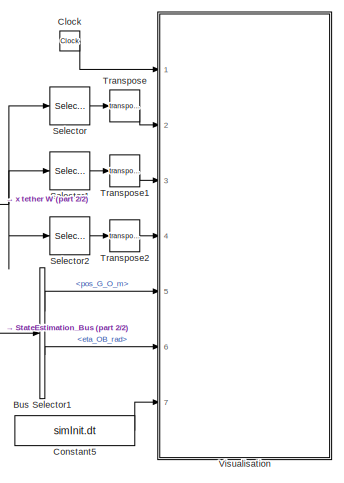
[diagram: root canvas - part 1/2, top right region]
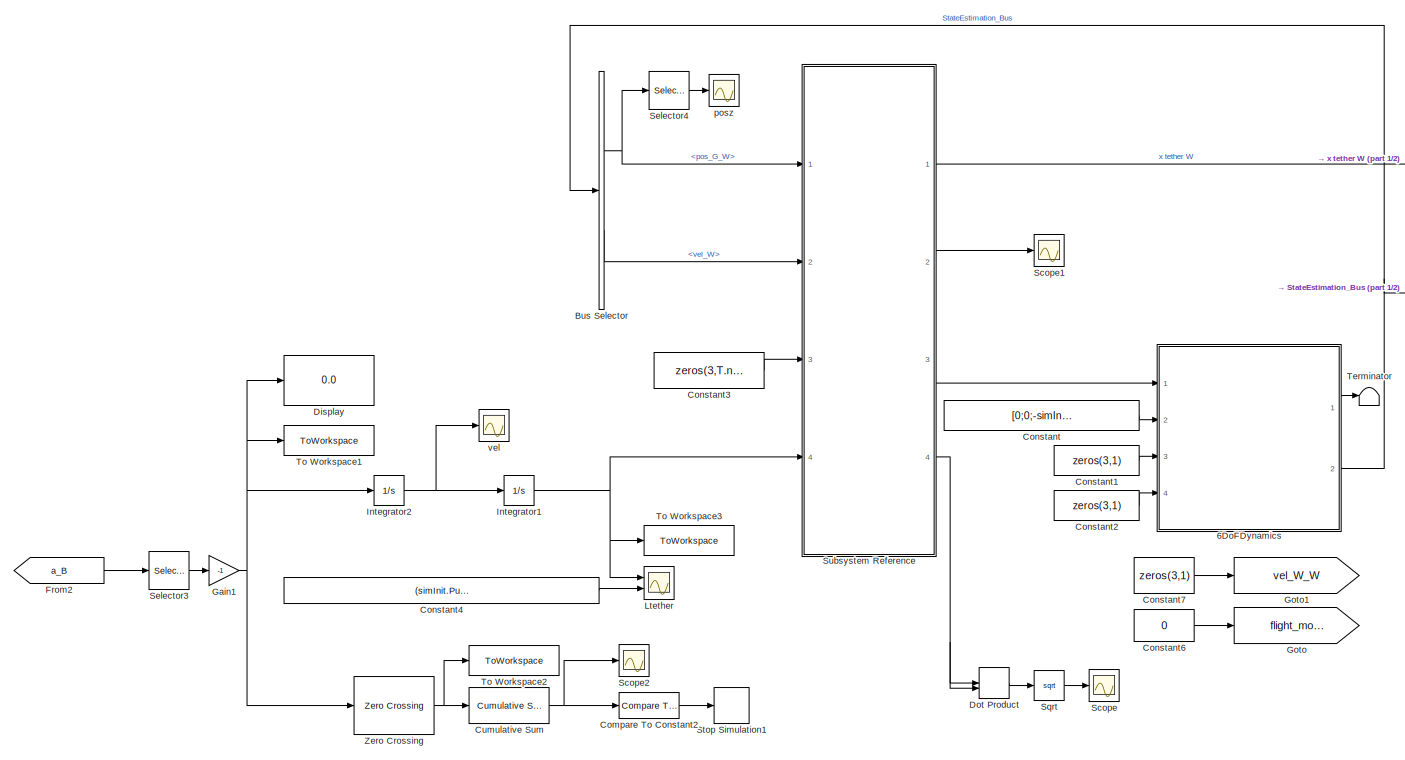
[diagram: root canvas - part 2/2, most of the canvas]
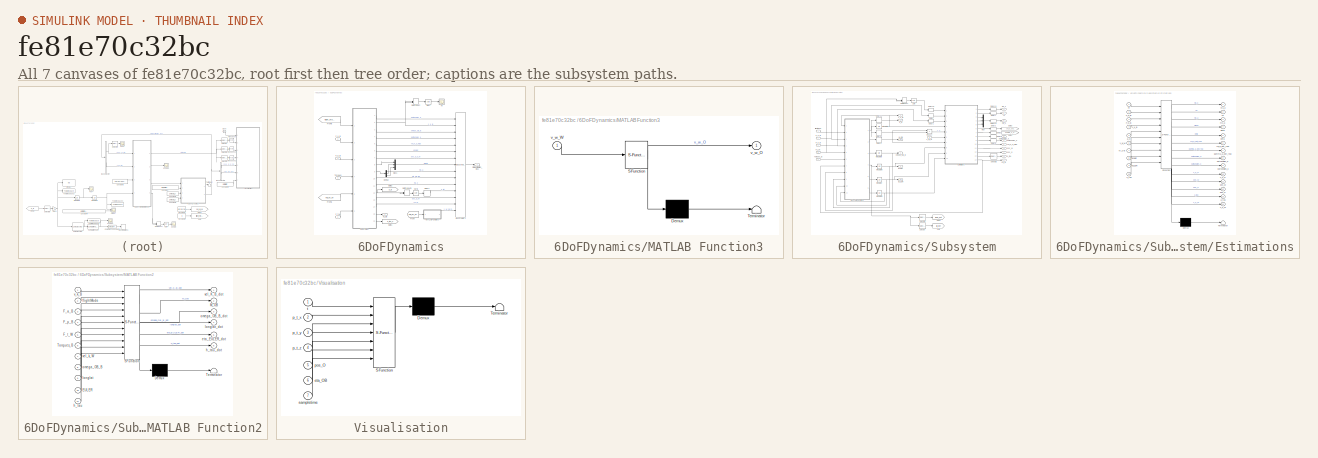
[diagram: thumbnail index - all 7 canvases of the model, root first then tree order]
MODEL slx_fe81e70c32bc
KIND model
CONFIG AbsTol = auto
CONFIG EnableMultiTasking = on
CONFIG FixedStep = dt
CONFIG InitFcn = close all
CONFIG MaxStep = auto
CONFIG MinStep = auto
CONFIG RelTol = 1e-3
CONFIG SampleTimeConstraint = Unconstrained
CONFIG Solver = ode4
CONFIG SolverName = ode4
CONFIG StartTime = 0.0
CONFIG StopTime = 300
BLOCK [SubSystem] 6DoFDynamics
  Ports = [4, 2]
  RequestExecContextInheritance = off
BLOCK [BusCreator] 6DoFDynamics/Bus Creator1
  DisplayOption = bar
  InheritFromInputs = on
  Inputs = 15
  Ports = [15, 1]
BLOCK [Delay] 6DoFDynamics/Delay1
  DelayLength = 1
  InputPortMap = u0
  Ports = [1, 1]
BLOCK [Demux] 6DoFDynamics/Demux
  DisplayOption = bar
  Outputs = 3
  Ports = [1, 3]
BLOCK [DotProduct] 6DoFDynamics/Dot Product
  OutDataTypeStr = Inherit: Inherit via internal rule
BLOCK [DotProduct] 6DoFDynamics/Dot Product1
  OutDataTypeStr = Inherit: Inherit via internal rule
BLOCK [Inport] 6DoFDynamics/F_a_B
  IconDisplay = Port number
  Port = 2
BLOCK [Inport] 6DoFDynamics/F_p_B
  IconDisplay = Port number
  Port = 3
BLOCK [Inport] 6DoFDynamics/F_t_W
  IconDisplay = Port number
BLOCK [From] 6DoFDynamics/From
  GotoTag = vel_W_W
  TagVisibility = global
BLOCK [From] 6DoFDynamics/From1
  GotoTag = vel_W_W
  TagVisibility = global
BLOCK [From] 6DoFDynamics/From5
  GotoTag = flight_mode
  TagVisibility = global
BLOCK [Goto] 6DoFDynamics/Goto1
  GotoTag = a_tau_z
  TagVisibility = global
BLOCK [Goto] 6DoFDynamics/Goto2
  GotoTag = a_B
  TagVisibility = global
BLOCK [SubSystem] 6DoFDynamics/MATLAB Function3
  ErrorFcn = Stateflow.Translate.translate
  PermitHierarchicalResolution = ExplicitOnly
  Ports = [1, 1]
  RequestExecContextInheritance = off
  SFBlockType = MATLAB Function
  TreatAsAtomicUnit = on
BLOCK [Demux] 6DoFDynamics/MATLAB Function3/ Demux 
  DisplayOption = bar
  Outputs = 1
  Ports = [1, 1]
BLOCK [S-Function] 6DoFDynamics/MATLAB Function3/ SFunction 
  EnableBusSupport = on
  FunctionName = sf_sfun
  Parameters = ENVMT
  PortCounts = [1 2]
  Ports = [1, 2]
  SFcnIsStateOwnerBlock = off
  SFunctionDeploymentMode = off
  Tag = Stateflow S-Function 35
BLOCK [Terminator] 6DoFDynamics/MATLAB Function3/ Terminator 
BLOCK [Outport] 6DoFDynamics/MATLAB Function3/v_w_O
  IconDisplay = Port number
  VectorParamsAs1DForOutWhenUnconnected = off
BLOCK [Inport] 6DoFDynamics/MATLAB Function3/v_w_W
  IconDisplay = Port number
BLOCK [Outport] 6DoFDynamics/M_OB
  IconDisplay = Port number
  PortDimensions = [3,3]
  VectorParamsAs1DForOutWhenUnconnected = off
BLOCK [Mux] 6DoFDynamics/Mux1
  DisplayOption = bar
  Inputs = 3
  Ports = [3, 1]
BLOCK [Sqrt] 6DoFDynamics/Sqrt
BLOCK [Sqrt] 6DoFDynamics/Sqrt1
BLOCK [Outport] 6DoFDynamics/StateEstimation_Bus
  IconDisplay = Port number
  Port = 2
  VectorParamsAs1DForOutWhenUnconnected = off
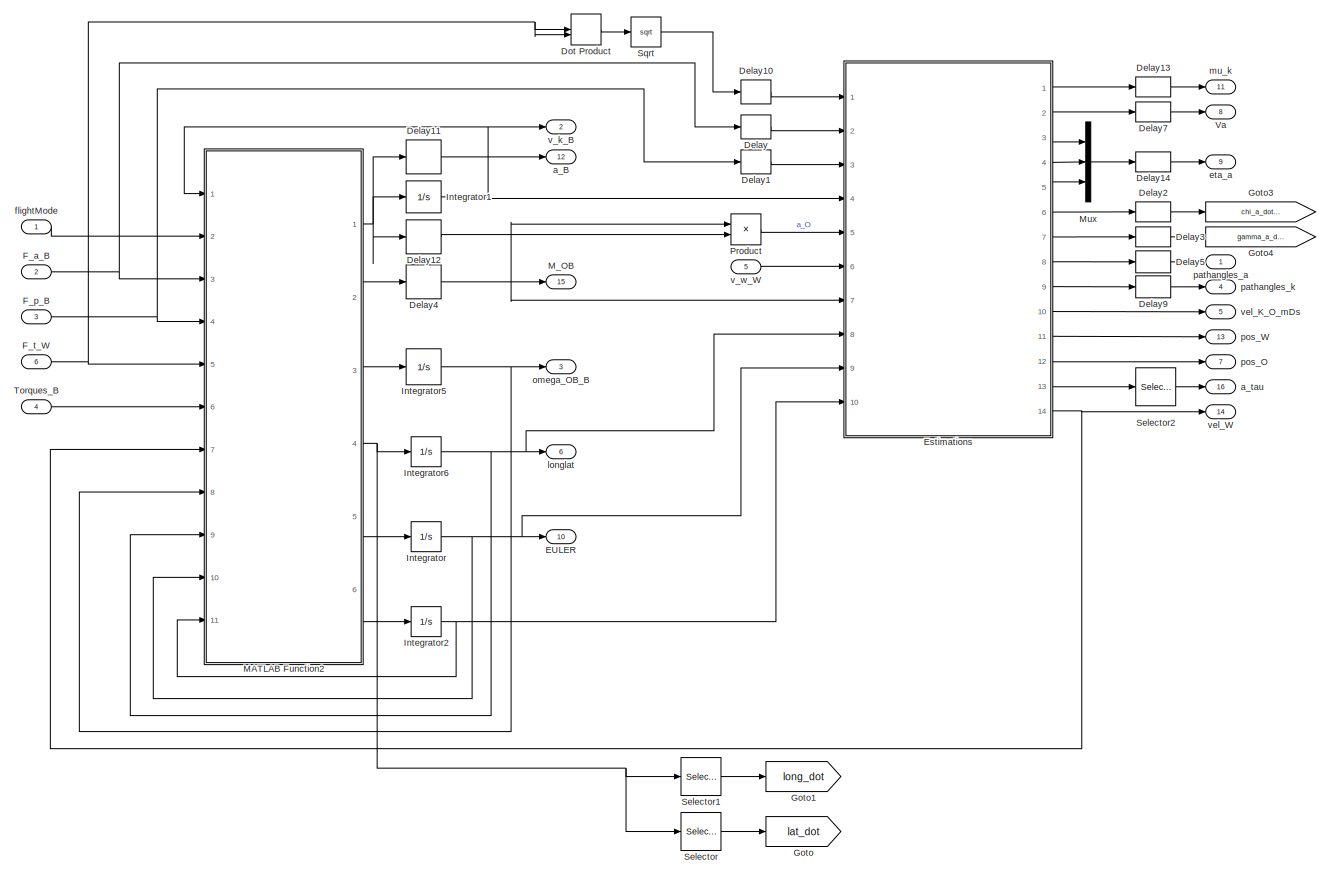
[diagram: 6DoFDynamics/Subsystem - part 1/1, most of the canvas]
BLOCK [SubSystem] 6DoFDynamics/Subsystem
  Ports = [6, 16]
  RequestExecContextInheritance = off
BLOCK [Delay] 6DoFDynamics/Subsystem/Delay
  DelayLength = 1
  InitialCondition = zeros(3,1)
  InputPortMap = u0
  Ports = [1, 1]
BLOCK [Delay] 6DoFDynamics/Subsystem/Delay1
  DelayLength = 1
  InitialCondition = zeros(3,1)
  InputPortMap = u0
  Ports = [1, 1]
BLOCK [Delay] 6DoFDynamics/Subsystem/Delay10
  DelayLength = 1
  InitialCondition = 0
  InputPortMap = u0
  Ports = [1, 1]
BLOCK [Delay] 6DoFDynamics/Subsystem/Delay11
  DelayLength = 1
  InitialCondition = zeros(3,1)
  InputPortMap = u0
  Ports = [1, 1]
BLOCK [Delay] 6DoFDynamics/Subsystem/Delay12
  DelayLength = 1
  InitialCondition = zeros(3,1)
  InputPortMap = u0
  Ports = [1, 1]
BLOCK [Delay] 6DoFDynamics/Subsystem/Delay13
  DelayLength = 1
  InitialCondition = 0
  InputPortMap = u0
  Ports = [1, 1]
BLOCK [Delay] 6DoFDynamics/Subsystem/Delay14
  DelayLength = 1
  InitialCondition = zeros(3,1)
  InputPortMap = u0
  Ports = [1, 1]
BLOCK [Delay] 6DoFDynamics/Subsystem/Delay2
  DelayLength = 1
  InputPortMap = u0
  Ports = [1, 1]
BLOCK [Delay] 6DoFDynamics/Subsystem/Delay3
  DelayLength = 1
  InputPortMap = u0
  Ports = [1, 1]
BLOCK [Delay] 6DoFDynamics/Subsystem/Delay4
  DelayLength = 1
  InitialCondition = eye(3)
  InputPortMap = u0
  Ports = [1, 1]
BLOCK [Delay] 6DoFDynamics/Subsystem/Delay5
  DelayLength = 1
  InitialCondition = zeros(2,1)
  InputPortMap = u0
  Ports = [1, 1]
BLOCK [Delay] 6DoFDynamics/Subsystem/Delay7
  DelayLength = 1
  InitialCondition = simInit.vel_B_init(1)
  InputPortMap = u0
  Ports = [1, 1]
BLOCK [Delay] 6DoFDynamics/Subsystem/Delay9
  DelayLength = 1
  InitialCondition = zeros(2,1)
  InputPortMap = u0
  Ports = [1, 1]
BLOCK [DotProduct] 6DoFDynamics/Subsystem/Dot Product
  OutDataTypeStr = Inherit: Inherit via internal rule
BLOCK [Outport] 6DoFDynamics/Subsystem/EULER
  IconDisplay = Port number
  Port = 10
  PortDimensions = [3,1]
  VectorParamsAs1DForOutWhenUnconnected = off
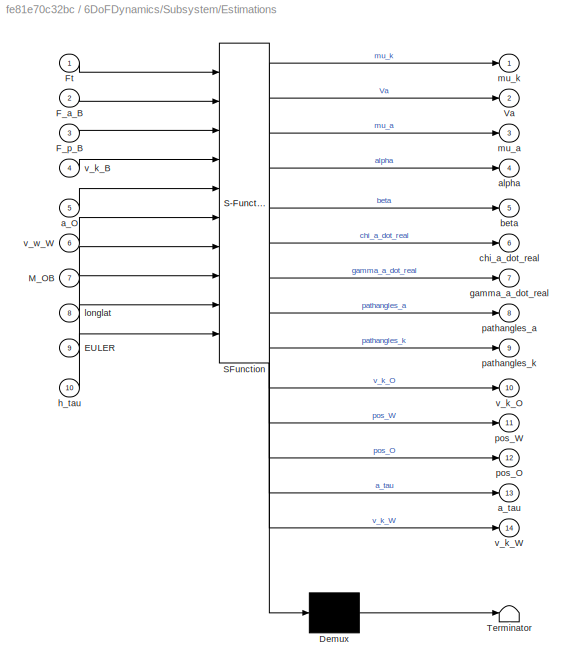
BLOCK [SubSystem] 6DoFDynamics/Subsystem/Estimations
  ErrorFcn = Stateflow.Translate.translate
  PermitHierarchicalResolution = ExplicitOnly
  Ports = [10, 14]
  RequestExecContextInheritance = off
  SFBlockType = MATLAB Function
  TreatAsAtomicUnit = on
BLOCK [Demux] 6DoFDynamics/Subsystem/Estimations/ Demux 
  DisplayOption = bar
  Outputs = 1
  Ports = [1, 1]
BLOCK [S-Function] 6DoFDynamics/Subsystem/Estimations/ SFunction 
  EnableBusSupport = on
  FunctionName = sf_sfun
  Parameters = DE2019,ENVMT
  PortCounts = [10 15]
  Ports = [10, 15]
  SFcnIsStateOwnerBlock = off
  SFunctionDeploymentMode = off
  Tag = Stateflow S-Function 9
BLOCK [Terminator] 6DoFDynamics/Subsystem/Estimations/ Terminator 
BLOCK [Inport] 6DoFDynamics/Subsystem/Estimations/EULER
  IconDisplay = Port number
  Port = 9
BLOCK [Inport] 6DoFDynamics/Subsystem/Estimations/F_a_B
  IconDisplay = Port number
  Port = 2
BLOCK [Inport] 6DoFDynamics/Subsystem/Estimations/F_p_B
  IconDisplay = Port number
  Port = 3
BLOCK [Inport] 6DoFDynamics/Subsystem/Estimations/Ft
  IconDisplay = Port number
BLOCK [Inport] 6DoFDynamics/Subsystem/Estimations/M_OB
  IconDisplay = Port number
  Port = 7
BLOCK [Outport] 6DoFDynamics/Subsystem/Estimations/Va
  IconDisplay = Port number
  Port = 2
  VectorParamsAs1DForOutWhenUnconnected = off
BLOCK [Inport] 6DoFDynamics/Subsystem/Estimations/a_O
  IconDisplay = Port number
  Port = 5
BLOCK [Outport] 6DoFDynamics/Subsystem/Estimations/a_tau
  IconDisplay = Port number
  Port = 13
  VectorParamsAs1DForOutWhenUnconnected = off
BLOCK [Outport] 6DoFDynamics/Subsystem/Estimations/alpha
  IconDisplay = Port number
  Port = 4
  VectorParamsAs1DForOutWhenUnconnected = off
BLOCK [Outport] 6DoFDynamics/Subsystem/Estimations/beta
  IconDisplay = Port number
  Port = 5
  VectorParamsAs1DForOutWhenUnconnected = off
BLOCK [Outport] 6DoFDynamics/Subsystem/Estimations/chi_a_dot_real
  IconDisplay = Port number
  Port = 6
  VectorParamsAs1DForOutWhenUnconnected = off
BLOCK [Outport] 6DoFDynamics/Subsystem/Estimations/gamma_a_dot_real
  IconDisplay = Port number
  Port = 7
  VectorParamsAs1DForOutWhenUnconnected = off
BLOCK [Inport] 6DoFDynamics/Subsystem/Estimations/h_tau
  IconDisplay = Port number
  Port = 10
BLOCK [Inport] 6DoFDynamics/Subsystem/Estimations/longlat
  IconDisplay = Port number
  Port = 8
BLOCK [Outport] 6DoFDynamics/Subsystem/Estimations/mu_a
  IconDisplay = Port number
  Port = 3
  VectorParamsAs1DForOutWhenUnconnected = off
BLOCK [Outport] 6DoFDynamics/Subsystem/Estimations/mu_k
  IconDisplay = Port number
  VectorParamsAs1DForOutWhenUnconnected = off
BLOCK [Outport] 6DoFDynamics/Subsystem/Estimations/pathangles_a
  IconDisplay = Port number
  Port = 8
  VectorParamsAs1DForOutWhenUnconnected = off
BLOCK [Outport] 6DoFDynamics/Subsystem/Estimations/pathangles_k
  IconDisplay = Port number
  Port = 9
  VectorParamsAs1DForOutWhenUnconnected = off
BLOCK [Outport] 6DoFDynamics/Subsystem/Estimations/pos_O
  IconDisplay = Port number
  Port = 12
  VectorParamsAs1DForOutWhenUnconnected = off
BLOCK [Outport] 6DoFDynamics/Subsystem/Estimations/pos_W
  IconDisplay = Port number
  Port = 11
  VectorParamsAs1DForOutWhenUnconnected = off
BLOCK [Inport] 6DoFDynamics/Subsystem/Estimations/v_k_B
  IconDisplay = Port number
  Port = 4
BLOCK [Outport] 6DoFDynamics/Subsystem/Estimations/v_k_O
  IconDisplay = Port number
  Port = 10
  VectorParamsAs1DForOutWhenUnconnected = off
BLOCK [Outport] 6DoFDynamics/Subsystem/Estimations/v_k_W
  IconDisplay = Port number
  Port = 14
  VectorParamsAs1DForOutWhenUnconnected = off
BLOCK [Inport] 6DoFDynamics/Subsystem/Estimations/v_w_W
  IconDisplay = Port number
  Port = 6
BLOCK [Inport] 6DoFDynamics/Subsystem/F_a_B
  IconDisplay = Port number
  Port = 2
  PortDimensions = [3,1]
BLOCK [Inport] 6DoFDynamics/Subsystem/F_p_B
  IconDisplay = Port number
  Port = 3
BLOCK [Inport] 6DoFDynamics/Subsystem/F_t_W
  IconDisplay = Port number
  Port = 6
BLOCK [Goto] 6DoFDynamics/Subsystem/Goto
  GotoTag = lat_dot
  TagVisibility = global
BLOCK [Goto] 6DoFDynamics/Subsystem/Goto1
  GotoTag = long_dot
  TagVisibility = global
BLOCK [Goto] 6DoFDynamics/Subsystem/Goto3
  GotoTag = chi_a_dot_real
  TagVisibility = global
BLOCK [Goto] 6DoFDynamics/Subsystem/Goto4
  GotoTag = gamma_a_dot_real
  TagVisibility = global
BLOCK [Integrator] 6DoFDynamics/Subsystem/Integrator
  InitialCondition = simInit.eta_init
  Ports = [1, 1]
  WrapState = on
BLOCK [Integrator] 6DoFDynamics/Subsystem/Integrator1
  InitialCondition = simInit.vel_B_init
  Ports = [1, 1]
BLOCK [Integrator] 6DoFDynamics/Subsystem/Integrator2
  InitialCondition = norm(simInit.pos_O_init)
  Ports = [1, 1]
BLOCK [Integrator] 6DoFDynamics/Subsystem/Integrator5
  InitialCondition = zeros(3,1)
  Ports = [1, 1]
BLOCK [Integrator] 6DoFDynamics/Subsystem/Integrator6
  InitialCondition = [simInit.long_init;simInit.lat_init]
  Ports = [1, 1]
  WrapState = on
BLOCK [SubSystem] 6DoFDynamics/Subsystem/MATLAB Function2
  ErrorFcn = Stateflow.Translate.translate
  PermitHierarchicalResolution = ExplicitOnly
  Ports = [11, 6]
  RequestExecContextInheritance = off
  SFBlockType = MATLAB Function
  TreatAsAtomicUnit = on
BLOCK [Demux] 6DoFDynamics/Subsystem/MATLAB Function2/ Demux 
  DisplayOption = bar
  Outputs = 1
  Ports = [1, 1]
BLOCK [S-Function] 6DoFDynamics/Subsystem/MATLAB Function2/ SFunction 
  EnableBusSupport = on
  FunctionName = sf_sfun
  Parameters = DE2019,ENVMT
  PortCounts = [11 7]
  Ports = [11, 7]
  SFcnIsStateOwnerBlock = off
  SFunctionDeploymentMode = off
  Tag = Stateflow S-Function 10
BLOCK [Terminator] 6DoFDynamics/Subsystem/MATLAB Function2/ Terminator 
BLOCK [Inport] 6DoFDynamics/Subsystem/MATLAB Function2/EULER
  IconDisplay = Port number
  Port = 10
BLOCK [Inport] 6DoFDynamics/Subsystem/MATLAB Function2/F_a_B
  IconDisplay = Port number
  Port = 3
BLOCK [Inport] 6DoFDynamics/Subsystem/MATLAB Function2/F_p_B
  IconDisplay = Port number
  Port = 4
BLOCK [Inport] 6DoFDynamics/Subsystem/MATLAB Function2/F_t_W
  IconDisplay = Port number
  Port = 5
BLOCK [Outport] 6DoFDynamics/Subsystem/MATLAB Function2/M_OB
  IconDisplay = Port number
  Port = 2
  VectorParamsAs1DForOutWhenUnconnected = off
BLOCK [Inport] 6DoFDynamics/Subsystem/MATLAB Function2/Torques_B
  IconDisplay = Port number
  Port = 6
BLOCK [Outport] 6DoFDynamics/Subsystem/MATLAB Function2/eta_EULER_dot
  IconDisplay = Port number
  Port = 5
  VectorParamsAs1DForOutWhenUnconnected = off
BLOCK [Inport] 6DoFDynamics/Subsystem/MATLAB Function2/flightMode
  IconDisplay = Port number
  Port = 2
BLOCK [Inport] 6DoFDynamics/Subsystem/MATLAB Function2/h_tau
  IconDisplay = Port number
  Port = 11
BLOCK [Outport] 6DoFDynamics/Subsystem/MATLAB Function2/h_tau_dot
  IconDisplay = Port number
  Port = 6
  VectorParamsAs1DForOutWhenUnconnected = off
BLOCK [Inport] 6DoFDynamics/Subsystem/MATLAB Function2/longlat
  IconDisplay = Port number
  Port = 9
BLOCK [Outport] 6DoFDynamics/Subsystem/MATLAB Function2/longlat_dot
  IconDisplay = Port number
  Port = 4
  VectorParamsAs1DForOutWhenUnconnected = off
BLOCK [Inport] 6DoFDynamics/Subsystem/MATLAB Function2/omega_OB_B
  IconDisplay = Port number
  Port = 8
BLOCK [Outport] 6DoFDynamics/Subsystem/MATLAB Function2/omega_OB_B_dot
  IconDisplay = Port number
  Port = 3
  VectorParamsAs1DForOutWhenUnconnected = off
BLOCK [Inport] 6DoFDynamics/Subsystem/MATLAB Function2/v_k_B
  IconDisplay = Port number
BLOCK [Outport] 6DoFDynamics/Subsystem/MATLAB Function2/vel_K_B_dot
  IconDisplay = Port number
  VectorParamsAs1DForOutWhenUnconnected = off
BLOCK [Inport] 6DoFDynamics/Subsystem/MATLAB Function2/vel_k_W
  IconDisplay = Port number
  Port = 7
BLOCK [Outport] 6DoFDynamics/Subsystem/M_OB
  IconDisplay = Port number
  Port = 15
  PortDimensions = [3,3]
  VectorParamsAs1DForOutWhenUnconnected = off
BLOCK [Mux] 6DoFDynamics/Subsystem/Mux
  DisplayOption = bar
  Inputs = 3
  Ports = [3, 1]
BLOCK [Product] 6DoFDynamics/Subsystem/Product
  InputSameDT = off
  Multiplication = Matrix(*)
  OutDataTypeStr = Inherit: Inherit via internal rule
  Ports = [2, 1]
  RndMeth = Floor
  SaturateOnIntegerOverflow = off
BLOCK [Selector] 6DoFDynamics/Subsystem/Selector
  IndexOptions = Index vector (dialog)
  Indices = 2
  InputPortWidth = 2
  OutputSizes = 1
  Ports = [1, 1]
BLOCK [Selector] 6DoFDynamics/Subsystem/Selector1
  IndexOptions = Index vector (dialog)
  Indices = 1
  InputPortWidth = 2
  OutputSizes = 1
  Ports = [1, 1]
BLOCK [Selector] 6DoFDynamics/Subsystem/Selector2
  IndexOptions = Index vector (dialog)
  Indices = 3
  InputPortWidth = 3
  OutputSizes = 1
  Ports = [1, 1]
BLOCK [Sqrt] 6DoFDynamics/Subsystem/Sqrt
BLOCK [Inport] 6DoFDynamics/Subsystem/Torques_B
  IconDisplay = Port number
  Port = 4
  PortDimensions = [3,1]
BLOCK [Outport] 6DoFDynamics/Subsystem/Va
  IconDisplay = Port number
  Port = 8
  PortDimensions = 1
  VectorParamsAs1DForOutWhenUnconnected = off
BLOCK [Outport] 6DoFDynamics/Subsystem/a_B
  IconDisplay = Port number
  Port = 12
  PortDimensions = [3,1]
  VectorParamsAs1DForOutWhenUnconnected = off
BLOCK [Outport] 6DoFDynamics/Subsystem/a_tau
  IconDisplay = Port number
  Port = 16
  PortDimensions = 1
  VectorParamsAs1DForOutWhenUnconnected = off
BLOCK [Outport] 6DoFDynamics/Subsystem/eta_a
  IconDisplay = Port number
  Port = 9
  PortDimensions = [3,1]
  VectorParamsAs1DForOutWhenUnconnected = off
BLOCK [Inport] 6DoFDynamics/Subsystem/flightMode
  IconDisplay = Port number
BLOCK [Outport] 6DoFDynamics/Subsystem/longlat
  IconDisplay = Port number
  Port = 6
  PortDimensions = [2,1]
  VectorParamsAs1DForOutWhenUnconnected = off
BLOCK [Outport] 6DoFDynamics/Subsystem/mu_k
  IconDisplay = Port number
  Port = 11
  PortDimensions = 1
  VectorParamsAs1DForOutWhenUnconnected = off
BLOCK [Outport] 6DoFDynamics/Subsystem/omega_OB_B
  IconDisplay = Port number
  Port = 3
  PortDimensions = [3,1]
  VectorParamsAs1DForOutWhenUnconnected = off
BLOCK [Outport] 6DoFDynamics/Subsystem/pathangles_a
  IconDisplay = Port number
  PortDimensions = [2,1]
  VectorParamsAs1DForOutWhenUnconnected = off
BLOCK [Outport] 6DoFDynamics/Subsystem/pathangles_k
  IconDisplay = Port number
  Port = 4
  PortDimensions = [2,1]
  VectorParamsAs1DForOutWhenUnconnected = off
BLOCK [Outport] 6DoFDynamics/Subsystem/pos_O
  IconDisplay = Port number
  Port = 7
  PortDimensions = [3,1]
  VectorParamsAs1DForOutWhenUnconnected = off
BLOCK [Outport] 6DoFDynamics/Subsystem/pos_W
  IconDisplay = Port number
  Port = 13
  PortDimensions = [3,1]
  VectorParamsAs1DForOutWhenUnconnected = off
BLOCK [Outport] 6DoFDynamics/Subsystem/v_k_B
  IconDisplay = Port number
  Port = 2
  PortDimensions = [3,1]
  VectorParamsAs1DForOutWhenUnconnected = off
BLOCK [Inport] 6DoFDynamics/Subsystem/v_w_W
  IconDisplay = Port number
  Port = 5
  PortDimensions = [3,1]
BLOCK [Outport] 6DoFDynamics/Subsystem/vel_K_O_mDs
  IconDisplay = Port number
  Port = 5
  PortDimensions = [3,1]
  VectorParamsAs1DForOutWhenUnconnected = off
BLOCK [Outport] 6DoFDynamics/Subsystem/vel_W
  IconDisplay = Port number
  Port = 14
  PortDimensions = [3,1]
  VectorParamsAs1DForOutWhenUnconnected = off
BLOCK [Inport] 6DoFDynamics/Torques
  IconDisplay = Port number
  Port = 4
BLOCK [Scope] 6DoFDynamics/Vk
  Floating = off
  NumInputPorts = 1
  Ports = [1]
  ScopeSpecificationString = Simulink.scopes.TimeScopeBlockCfg('CurrentConfiguration', extmgr.ConfigurationSet(extmgr.Configuration('Core','General UI',true),extmgr.Configuration('Core','Source UI',true),extmgr.Configuration('Sources','WiredSimulink',true,'DataLoggingVariableName','ScopeData2'),extmgr.Configuration('Visuals','Time Domain',true,'SerializedDisplays',{struct('MinYLimReal','19.31834','MaxYLimReal','96.53175','YLa...<+1468ch>
BLOCK [BusSelector] Bus Selector
  OutputAsBus = off
  OutputSignals = pos_G_W,vel_W
  Ports = [1, 2]
BLOCK [BusSelector] Bus Selector1
  Commented = on
  OutputAsBus = off
  OutputSignals = pos_G_O_m,eta_OB_rad
  Ports = [1, 2]
BLOCK [Clock] Clock
  Commented = on
BLOCK [Reference] Compare To Constant2  REF=simulink/Logic and Bit
Operations/Compare
To Constant
  Ports = [1, 1]
  SourceBlock = simulink/Logic and Bit\nOperations/Compare\nTo Constant
  SourceProductBaseCode = SL
  SourceType = Compare To Constant
BLOCK [Constant] Constant
  Value = [0;0;-simInit.Pulling_Force]
BLOCK [Constant] Constant1
  Value = zeros(3,1)
BLOCK [Constant] Constant2
  Value = zeros(3,1)
BLOCK [Constant] Constant3
  Value = zeros(3,T.np)
BLOCK [Constant] Constant4
  Value = (simInit.Pulling_Force-(DE2019.mass*ENVMT.g))/ENVMT.g/T.rho_t
BLOCK [Constant] Constant5
  Commented = on
  Value = simInit.dt
BLOCK [Constant] Constant6
  Value = 0
BLOCK [Constant] Constant7
  Value = zeros(3,1)
BLOCK [Reference] Cumulative Sum  REF=dspmathops/Cumulative
Sum
  Ports = [1, 1]
  SourceBlock = dspmathops/Cumulative\nSum
  SourceProductBaseCode = DS
  SourceType = Cumulative Sum
  UserDataPersistent = on
BLOCK [Display] Display
  Commented = on
  Decimation = 1
  Ports = [1]
BLOCK [DotProduct] Dot Product
  OutDataTypeStr = Inherit: Inherit via internal rule
BLOCK [From] From2
  GotoTag = a_B
  TagVisibility = global
BLOCK [Gain] Gain1
  Gain = -1
  OutDataTypeStr = Inherit: Inherit via internal rule
  ParamDataTypeStr = Inherit: Inherit via internal rule
  SaturateOnIntegerOverflow = off
BLOCK [Goto] Goto
  GotoTag = flight_mode
  TagVisibility = global
BLOCK [Goto] Goto1
  GotoTag = vel_W_W
  TagVisibility = global
BLOCK [Integrator] Integrator1
  InitialCondition = T.tether_inital_lenght
  Ports = [1, 1]
BLOCK [Integrator] Integrator2
  Ports = [1, 1]
BLOCK [Scope] Ltether
  Commented = on
  Floating = off
  NumInputPorts = 2
  Ports = [2]
  ScopeSpecificationString = Simulink.scopes.TimeScopeBlockCfg('CurrentConfiguration', extmgr.ConfigurationSet(extmgr.Configuration('Core','General UI',true),extmgr.Configuration('Core','Source UI',true),extmgr.Configuration('Sources','WiredSimulink',true,'DataLoggingVariableName','ScopeData2'),extmgr.Configuration('Visuals','Time Domain',true,'SerializedDisplays',{struct('MinYLimReal','299.22976','MaxYLimReal','306.9322','YL...<+1517ch>
BLOCK [Scope] Scope
  Floating = off
  NumInputPorts = 1
  Ports = [1]
  ScopeSpecificationString = Simulink.scopes.TimeScopeBlockCfg('CurrentConfiguration', extmgr.ConfigurationSet(extmgr.Configuration('Core','General UI',true),extmgr.Configuration('Core','Source UI',true),extmgr.Configuration('Sources','WiredSimulink',true,'DataLoggingVariableName','ScopeData1'),extmgr.Configuration('Visuals','Time Domain',true,'SerializedDisplays',{struct('MinYLimReal','-0.05843','MaxYLimReal','0.56694','YLab...<+1388ch>
BLOCK [Scope] Scope1
  Commented = on
  Floating = off
  NumInputPorts = 1
  Ports = [1]
  ScopeSpecificationString = Simulink.scopes.TimeScopeBlockCfg('CurrentConfiguration', extmgr.ConfigurationSet(extmgr.Configuration('Core','General UI',true),extmgr.Configuration('Core','Source UI',true),extmgr.Configuration('Sources','WiredSimulink',true,'DataLoggingVariableName','ScopeData5'),extmgr.Configuration('Visuals','Time Domain',true),extmgr.Configuration('Tools','Plot Navigation',true),extmgr.Configuration('Tools',...<+40ch>
BLOCK [Scope] Scope2
  Commented = on
  Floating = off
  NumInputPorts = 1
  Ports = [1]
  ScopeSpecificationString = Simulink.scopes.TimeScopeBlockCfg('CurrentConfiguration', extmgr.ConfigurationSet(extmgr.Configuration('Core','General UI',true),extmgr.Configuration('Core','Source UI',true),extmgr.Configuration('Sources','WiredSimulink',true,'DataLoggingVariableName','ScopeData6'),extmgr.Configuration('Visuals','Time Domain',true,'SerializedDisplays',{struct('MinYLimReal','-0.625','MaxYLimReal','5.625','YLabelRe...<+1391ch>
BLOCK [Selector] Selector
  Commented = on
  IndexOptions = Index vector (dialog),Select all
  Indices = 1,1
  InputPortWidth = 3
  NumberOfDimensions = 2
  OutputSizes = 1,1
  Ports = [1, 1]
BLOCK [Selector] Selector1
  Commented = on
  IndexOptions = Index vector (dialog),Select all
  Indices = 2,1
  InputPortWidth = 3
  NumberOfDimensions = 2
  OutputSizes = 1,1
  Ports = [1, 1]
BLOCK [Selector] Selector2
  Commented = on
  IndexOptions = Index vector (dialog),Select all
  Indices = 3,1
  InputPortWidth = 3
  NumberOfDimensions = 2
  OutputSizes = 1,1
  Ports = [1, 1]
BLOCK [Selector] Selector3
  IndexOptions = Index vector (dialog)
  Indices = 3
  InputPortWidth = 3
  OutputSizes = 1
  Ports = [1, 1]
BLOCK [Selector] Selector4
  Commented = on
  IndexOptions = Index vector (dialog)
  Indices = 3
  InputPortWidth = 3
  OutputSizes = 1
  Ports = [1, 1]
BLOCK [Sqrt] Sqrt
BLOCK [Stop] Stop Simulation1
BLOCK [SubSystem] Subsystem Reference
  Ports = [4, 4]
  ReferencedSubsystem = Tether_dynamics_R2019B
  RequestExecContextInheritance = off
BLOCK [Terminator] Terminator
BLOCK [ToWorkspace] To Workspace1
  FixptAsFi = on
  MaxDataPoints = inf
  Ports = [1]
  SampleTime = -1
  SaveFormat = Timeseries
  VariableName = acc_kite
BLOCK [ToWorkspace] To Workspace2
  FixptAsFi = on
  MaxDataPoints = inf
  Ports = [1]
  SampleTime = -1
  SaveFormat = Timeseries
  VariableName = zero_crossings
BLOCK [ToWorkspace] To Workspace3
  FixptAsFi = on
  MaxDataPoints = inf
  Ports = [1]
  SampleTime = -1
  SaveFormat = Timeseries
  VariableName = tether_length
BLOCK [Math] Transpose
  Commented = on
  Operator = transpose
  Ports = [1, 1]
  SignedPower = off
BLOCK [Math] Transpose1
  Commented = on
  Operator = transpose
  Ports = [1, 1]
  SignedPower = off
BLOCK [Math] Transpose2
  Commented = on
  Operator = transpose
  Ports = [1, 1]
  SignedPower = off
BLOCK [SubSystem] Visualisation
  Commented = on
  ErrorFcn = Stateflow.Translate.translate
  PermitHierarchicalResolution = ExplicitOnly
  Ports = [7]
  RequestExecContextInheritance = off
  SFBlockType = MATLAB Function
  TreatAsAtomicUnit = on
BLOCK [Demux] Visualisation/ Demux 
  DisplayOption = bar
  Outputs = 1
  Ports = [1, 1]
BLOCK [S-Function] Visualisation/ SFunction 
  EnableBusSupport = on
  FunctionName = sf_sfun
  Parameters = ENVMT
  PortCounts = [7 1]
  Ports = [7, 1]
  SFcnIsStateOwnerBlock = off
  SFunctionDeploymentMode = off
  Tag = Stateflow S-Function 28
BLOCK [Terminator] Visualisation/ Terminator 
BLOCK [Inport] Visualisation/eta_OB
  IconDisplay = Port number
  Port = 6
BLOCK [Inport] Visualisation/p_t_x
  IconDisplay = Port number
  Port = 2
BLOCK [Inport] Visualisation/p_t_y
  IconDisplay = Port number
  Port = 3
BLOCK [Inport] Visualisation/p_t_z
  IconDisplay = Port number
  Port = 4
BLOCK [Inport] Visualisation/pos_O
  IconDisplay = Port number
  Port = 5
BLOCK [Inport] Visualisation/sampletime
  IconDisplay = Port number
  Port = 7
BLOCK [Inport] Visualisation/t
  IconDisplay = Port number
BLOCK [Reference] Zero Crossing  REF=dspsigops/Zero Crossing
  Ports = [1, 1]
  SourceBlock = dspsigops/Zero Crossing
  SourceProductBaseCode = DS
  SourceType = Zero Crossing
  UserDataPersistent = on
BLOCK [Scope] posz
  Commented = on
  Floating = off
  NumInputPorts = 1
  Ports = [1]
  ScopeSpecificationString = Simulink.scopes.TimeScopeBlockCfg('CurrentConfiguration', extmgr.ConfigurationSet(extmgr.Configuration('Core','General UI',true),extmgr.Configuration('Core','Source UI',true),extmgr.Configuration('Sources','WiredSimulink',true,'DataLoggingVariableName','ScopeData3'),extmgr.Configuration('Visuals','Time Domain',true,'SerializedDisplays',{struct('MinYLimReal','284.07588','MaxYLimReal','443.31712','Y...<+1481ch>
BLOCK [Scope] vel
  Commented = on
  Floating = off
  NumInputPorts = 1
  Ports = [1]
  ScopeSpecificationString = Simulink.scopes.TimeScopeBlockCfg('CurrentConfiguration', extmgr.ConfigurationSet(extmgr.Configuration('Core','General UI',true),extmgr.Configuration('Core','Source UI',true),extmgr.Configuration('Sources','WiredSimulink',true,'DataLoggingVariableName','ScopeData4'),extmgr.Configuration('Visuals','Time Domain',true,'SerializedDisplays',{struct('MinYLimReal','-4.81629','MaxYLimReal','4.81629','YLab...<+1493ch>
LINE 6DoFDynamics/Bus Creator1:1 -> 6DoFDynamics/StateEstimation_Bus:1
LINE 6DoFDynamics/Delay1:1 -> 6DoFDynamics/Bus Creator1:12
LINE 6DoFDynamics/Demux:1 -> 6DoFDynamics/Bus Creator1:9
LINE 6DoFDynamics/Demux:2 -> 6DoFDynamics/Mux1:2
LINE 6DoFDynamics/Demux:3 -> 6DoFDynamics/Mux1:3
LINE 6DoFDynamics/Dot Product1:1 -> 6DoFDynamics/Sqrt1:1
LINE 6DoFDynamics/Dot Product:1 -> 6DoFDynamics/Sqrt:1
LINE 6DoFDynamics/F_a_B:1 -> 6DoFDynamics/Subsystem:2
LINE 6DoFDynamics/F_p_B:1 -> 6DoFDynamics/Subsystem:3
LINE 6DoFDynamics/F_t_W:1 -> 6DoFDynamics/Subsystem:6
LINE 6DoFDynamics/From1:1 -> 6DoFDynamics/Subsystem:5
LINE 6DoFDynamics/From5:1 -> 6DoFDynamics/Subsystem:1
LINE 6DoFDynamics/From:1 -> 6DoFDynamics/MATLAB Function3:1
LINE 6DoFDynamics/MATLAB Function3:1 -> 6DoFDynamics/Bus Creator1:15
LINE 6DoFDynamics/Mux1:1 -> 6DoFDynamics/Bus Creator1:8
LINE 6DoFDynamics/Sqrt1:1 -> 6DoFDynamics/Delay1:1
LINE 6DoFDynamics/Sqrt:1 -> 6DoFDynamics/Vk:1
LINE 6DoFDynamics/Subsystem/Delay10:1 -> 6DoFDynamics/Subsystem/Estimations:1
LINE 6DoFDynamics/Subsystem/Delay11:1 -> 6DoFDynamics/Subsystem/a_B:1
LINE 6DoFDynamics/Subsystem/Delay12:1 -> 6DoFDynamics/Subsystem/Product:2
LINE 6DoFDynamics/Subsystem/Delay13:1 -> 6DoFDynamics/Subsystem/mu_k:1
LINE 6DoFDynamics/Subsystem/Delay14:1 -> 6DoFDynamics/Subsystem/eta_a:1
LINE 6DoFDynamics/Subsystem/Delay1:1 -> 6DoFDynamics/Subsystem/Estimations:3
LINE 6DoFDynamics/Subsystem/Delay2:1 -> 6DoFDynamics/Subsystem/Goto3:1
LINE 6DoFDynamics/Subsystem/Delay3:1 -> 6DoFDynamics/Subsystem/Goto4:1
NET 6DoFDynamics/Subsystem/Delay4:1 -> 6DoFDynamics/Subsystem/Estimations:7, 6DoFDynamics/Subsystem/M_OB:1, 6DoFDynamics/Subsystem/Product:1
LINE 6DoFDynamics/Subsystem/Delay5:1 -> 6DoFDynamics/Subsystem/pathangles_a:1
LINE 6DoFDynamics/Subsystem/Delay7:1 -> 6DoFDynamics/Subsystem/Va:1
LINE 6DoFDynamics/Subsystem/Delay9:1 -> 6DoFDynamics/Subsystem/pathangles_k:1
LINE 6DoFDynamics/Subsystem/Delay:1 -> 6DoFDynamics/Subsystem/Estimations:2
LINE 6DoFDynamics/Subsystem/Dot Product:1 -> 6DoFDynamics/Subsystem/Sqrt:1
LINE 6DoFDynamics/Subsystem/Estimations:1 -> 6DoFDynamics/Subsystem/Delay13:1
LINE 6DoFDynamics/Subsystem/Estimations:10 -> 6DoFDynamics/Subsystem/vel_K_O_mDs:1
LINE 6DoFDynamics/Subsystem/Estimations:11 -> 6DoFDynamics/Subsystem/pos_W:1
LINE 6DoFDynamics/Subsystem/Estimations:12 -> 6DoFDynamics/Subsystem/pos_O:1
LINE 6DoFDynamics/Subsystem/Estimations:13 -> 6DoFDynamics/Subsystem/Selector2:1
NET 6DoFDynamics/Subsystem/Estimations:14 -> 6DoFDynamics/Subsystem/MATLAB Function2:7, 6DoFDynamics/Subsystem/vel_W:1
LINE 6DoFDynamics/Subsystem/Estimations:2 -> 6DoFDynamics/Subsystem/Delay7:1
LINE 6DoFDynamics/Subsystem/Estimations:3 -> 6DoFDynamics/Subsystem/Mux:1
LINE 6DoFDynamics/Subsystem/Estimations:4 -> 6DoFDynamics/Subsystem/Mux:2
LINE 6DoFDynamics/Subsystem/Estimations:5 -> 6DoFDynamics/Subsystem/Mux:3
LINE 6DoFDynamics/Subsystem/Estimations:6 -> 6DoFDynamics/Subsystem/Delay2:1
LINE 6DoFDynamics/Subsystem/Estimations:7 -> 6DoFDynamics/Subsystem/Delay3:1
LINE 6DoFDynamics/Subsystem/Estimations:8 -> 6DoFDynamics/Subsystem/Delay5:1
LINE 6DoFDynamics/Subsystem/Estimations:9 -> 6DoFDynamics/Subsystem/Delay9:1
NET 6DoFDynamics/Subsystem/F_a_B:1 -> 6DoFDynamics/Subsystem/Delay:1, 6DoFDynamics/Subsystem/MATLAB Function2:3
NET 6DoFDynamics/Subsystem/F_p_B:1 -> 6DoFDynamics/Subsystem/Delay1:1, 6DoFDynamics/Subsystem/MATLAB Function2:4
NET 6DoFDynamics/Subsystem/F_t_W:1 -> 6DoFDynamics/Subsystem/Dot Product:1, 6DoFDynamics/Subsystem/Dot Product:2, 6DoFDynamics/Subsystem/MATLAB Function2:5
NET 6DoFDynamics/Subsystem/Integrator1:1 -> 6DoFDynamics/Subsystem/Estimations:4, 6DoFDynamics/Subsystem/MATLAB Function2:1, 6DoFDynamics/Subsystem/v_k_B:1
NET 6DoFDynamics/Subsystem/Integrator2:1 -> 6DoFDynamics/Subsystem/Estimations:10, 6DoFDynamics/Subsystem/MATLAB Function2:11
NET 6DoFDynamics/Subsystem/Integrator5:1 -> 6DoFDynamics/Subsystem/MATLAB Function2:8, 6DoFDynamics/Subsystem/omega_OB_B:1
NET 6DoFDynamics/Subsystem/Integrator6:1 -> 6DoFDynamics/Subsystem/Estimations:8, 6DoFDynamics/Subsystem/MATLAB Function2:9, 6DoFDynamics/Subsystem/longlat:1
NET 6DoFDynamics/Subsystem/Integrator:1 -> 6DoFDynamics/Subsystem/EULER:1, 6DoFDynamics/Subsystem/Estimations:9, 6DoFDynamics/Subsystem/MATLAB Function2:10
NET 6DoFDynamics/Subsystem/MATLAB Function2:1 -> 6DoFDynamics/Subsystem/Delay11:1, 6DoFDynamics/Subsystem/Delay12:1, 6DoFDynamics/Subsystem/Integrator1:1
LINE 6DoFDynamics/Subsystem/MATLAB Function2:2 -> 6DoFDynamics/Subsystem/Delay4:1
LINE 6DoFDynamics/Subsystem/MATLAB Function2:3 -> 6DoFDynamics/Subsystem/Integrator5:1
NET 6DoFDynamics/Subsystem/MATLAB Function2:4 -> 6DoFDynamics/Subsystem/Integrator6:1, 6DoFDynamics/Subsystem/Selector1:1, 6DoFDynamics/Subsystem/Selector:1
LINE 6DoFDynamics/Subsystem/MATLAB Function2:5 -> 6DoFDynamics/Subsystem/Integrator:1
LINE 6DoFDynamics/Subsystem/MATLAB Function2:6 -> 6DoFDynamics/Subsystem/Integrator2:1
LINE 6DoFDynamics/Subsystem/Mux:1 -> 6DoFDynamics/Subsystem/Delay14:1
LINE 6DoFDynamics/Subsystem/Product:1 -> 6DoFDynamics/Subsystem/Estimations:5
LINE 6DoFDynamics/Subsystem/Selector1:1 -> 6DoFDynamics/Subsystem/Goto1:1
LINE 6DoFDynamics/Subsystem/Selector2:1 -> 6DoFDynamics/Subsystem/a_tau:1
LINE 6DoFDynamics/Subsystem/Selector:1 -> 6DoFDynamics/Subsystem/Goto:1
LINE 6DoFDynamics/Subsystem/Sqrt:1 -> 6DoFDynamics/Subsystem/Delay10:1
LINE 6DoFDynamics/Subsystem/Torques_B:1 -> 6DoFDynamics/Subsystem/MATLAB Function2:6
LINE 6DoFDynamics/Subsystem/flightMode:1 -> 6DoFDynamics/Subsystem/MATLAB Function2:2
LINE 6DoFDynamics/Subsystem/v_w_W:1 -> 6DoFDynamics/Subsystem/Estimations:6
LINE 6DoFDynamics/Subsystem:1 -> 6DoFDynamics/Bus Creator1:1
LINE 6DoFDynamics/Subsystem:10 -> 6DoFDynamics/Bus Creator1:10
LINE 6DoFDynamics/Subsystem:11 -> 6DoFDynamics/Bus Creator1:11
NET 6DoFDynamics/Subsystem:12 -> 6DoFDynamics/Dot Product1:1, 6DoFDynamics/Dot Product1:2, 6DoFDynamics/Goto2:1
LINE 6DoFDynamics/Subsystem:13 -> 6DoFDynamics/Bus Creator1:13
LINE 6DoFDynamics/Subsystem:14 -> 6DoFDynamics/Bus Creator1:14
LINE 6DoFDynamics/Subsystem:15 -> 6DoFDynamics/M_OB:1
LINE 6DoFDynamics/Subsystem:16 -> 6DoFDynamics/Goto1:1
NET 6DoFDynamics/Subsystem:2 -> 6DoFDynamics/Bus Creator1:2, 6DoFDynamics/Dot Product:1, 6DoFDynamics/Dot Product:2
LINE 6DoFDynamics/Subsystem:3 -> 6DoFDynamics/Bus Creator1:3
LINE 6DoFDynamics/Subsystem:4 -> 6DoFDynamics/Bus Creator1:4
LINE 6DoFDynamics/Subsystem:5 -> 6DoFDynamics/Bus Creator1:5
LINE 6DoFDynamics/Subsystem:6 -> 6DoFDynamics/Bus Creator1:6
LINE 6DoFDynamics/Subsystem:7 -> 6DoFDynamics/Bus Creator1:7
LINE 6DoFDynamics/Subsystem:8 -> 6DoFDynamics/Mux1:1
LINE 6DoFDynamics/Subsystem:9 -> 6DoFDynamics/Demux:1
LINE 6DoFDynamics/Torques:1 -> 6DoFDynamics/Subsystem:4
LINE 6DoFDynamics:1 -> Terminator:1
NET 6DoFDynamics:2 -> Bus Selector1:1, Bus Selector:1
LINE Bus Selector1:1 -> Visualisation:5
LINE Bus Selector1:2 -> Visualisation:6
NET Bus Selector:1 -> Selector4:1, Subsystem Reference:1
LINE Bus Selector:2 -> Subsystem Reference:2
LINE Clock:1 -> Visualisation:1
LINE Compare To Constant2:1 -> Stop Simulation1:1
LINE Constant1:1 -> 6DoFDynamics:3
LINE Constant2:1 -> 6DoFDynamics:4
LINE Constant3:1 -> Subsystem Reference:3
LINE Constant4:1 -> Ltether:2
LINE Constant5:1 -> Visualisation:7
LINE Constant6:1 -> Goto:1
LINE Constant7:1 -> Goto1:1
LINE Constant:1 -> 6DoFDynamics:2
NET Cumulative Sum:1 -> Compare To Constant2:1, Scope2:1
LINE Dot Product:1 -> Sqrt:1
LINE From2:1 -> Selector3:1
NET Gain1:1 -> Display:1, Integrator2:1, To Workspace1:1, Zero Crossing:1
NET Integrator1:1 -> Ltether:1, Subsystem Reference:4, To Workspace3:1
NET Integrator2:1 -> Integrator1:1, vel:1
LINE Selector1:1 -> Transpose1:1
LINE Selector2:1 -> Transpose2:1
LINE Selector3:1 -> Gain1:1
LINE Selector4:1 -> posz:1
LINE Selector:1 -> Transpose:1
LINE Sqrt:1 -> Scope:1
NET Subsystem Reference:1 -> Selector1:1, Selector2:1, Selector:1
LINE Subsystem Reference:2 -> Scope1:1
LINE Subsystem Reference:3 -> 6DoFDynamics:1
NET Subsystem Reference:4 -> Dot Product:1, Dot Product:2
LINE Transpose1:1 -> Visualisation:3
LINE Transpose2:1 -> Visualisation:4
LINE Transpose:1 -> Visualisation:2
NET Zero Crossing:1 -> Cumulative Sum:1, To Workspace2:1
note: NET lines group one-source signal fan-out (src -> all destinations, sorted); 1:1 wires keep LINE
CHART 6DoFDynamics/Subsystem/Estimations states=1 transitions=1
  STATE_LABEL 'eML_blk_kernel()'
  STATE_LABEL 'SCRIPT:\nfunction [mu_k,Va, mu_a, alpha, beta, chi_a_dot_real,gamma_a_dot_real, pathangles_a, pathangles_k, v_k_O, pos_W, pos_O,a_tau, v_k_W] = fcn(Ft, F_a_B, F_p_B, v_k_B, a_O, v_w_W,M_OB,longlat,EULER,...\n    ENVMT, DE2019, h_tau)\n\nmu_k = 0;\nVa = 0;\nmu_a = 0;\nalpha =0; \nbeta=0;\nchi_a_dot_real=0;\ngamma_a_dot_real=0;\npathangles_a =zeros(2,1);\npathangles_k=zeros(2,1); \nchi_a_dot_real2=0;\ngamma_a_dot...<+2747ch>'
CHART 6DoFDynamics/Subsystem/MATLAB Function2 states=1 transitions=1
  STATE_LABEL 'eML_blk_kernel()'
  STATE_LABEL 'SCRIPT:\nfunction [vel_K_B_dot, M_OB, omega_OB_B_dot, longlat_dot, eta_EULER_dot, h_tau_dot] = fcn(v_k_B, flightMode, DE2019, F_a_B, F_p_B ,...\n    ENVMT, F_t_W, Torques_B, vel_k_W, omega_OB_B, longlat, EULER, h_tau)\n\nx_tau_2dot = 0;\ny_tau_2dot = 0;\nz_tau_2dot = 0;\nz_tau_2dot_unsat = 0;\n\nomega_OB_B_dot = zeros(3,1);\neta_EULER_dot = zeros(3,1);\nlonglat_dot = zeros(2,1);\nvel_K_B_dot = zeros(3,1);\n\nc_...<+2262ch>'
CHART Visualisation states=1 transitions=1
  STATE_LABEL 'eML_blk_kernel()'
  STATE_LABEL "SCRIPT:\nfunction Visualisation(t,p_t_x,p_t_y,p_t_z, pos_O,eta_OB, ENVMT, sampletime)   \n    persistent handleTether\n    persistent Vert\n    persistent handlePlane\n    \n    coder.extrinsic('plot3','patch');\n \n    %% Figure settings\n    if t==0\n        figure(99)\n%         addToolbarExplorationButtons(gcf)\n        xlabel('x_W (m)');%, 'interpreter', 'latex')\n        ylabel('y_W (m)');%, 'interpreter...<+3608ch>"
CHART 6DoFDynamics/MATLAB Function3 states=1 transitions=1
  STATE_LABEL 'eML_blk_kernel()'
  STATE_LABEL 'SCRIPT:\nfunction v_w_O = fcn(v_w_W, ENVMT)\n\nv_w_O = transformFromWtoO(ENVMT.windDirection_rad, v_w_W );\n'
